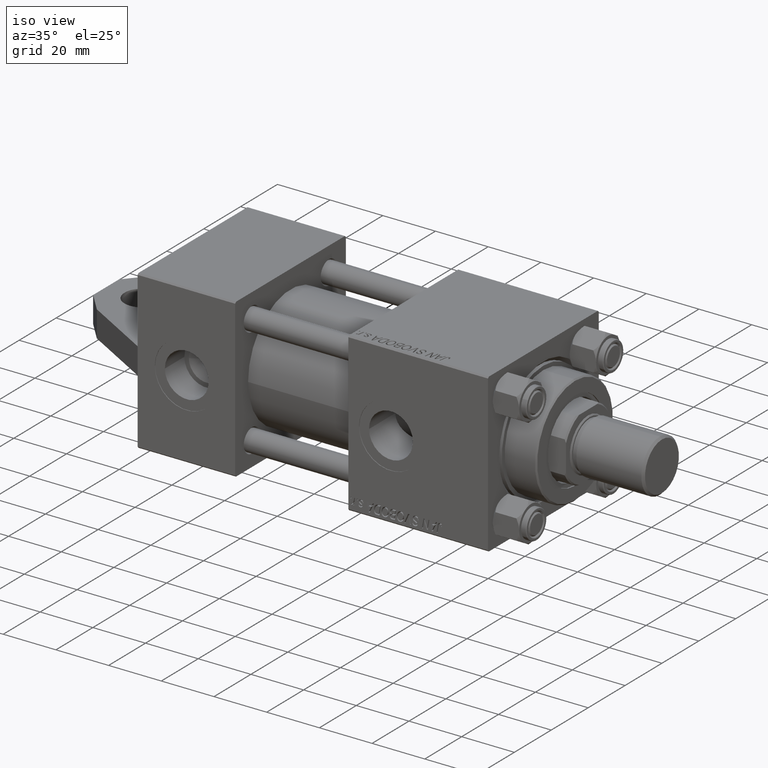
[diagram: clean part render]
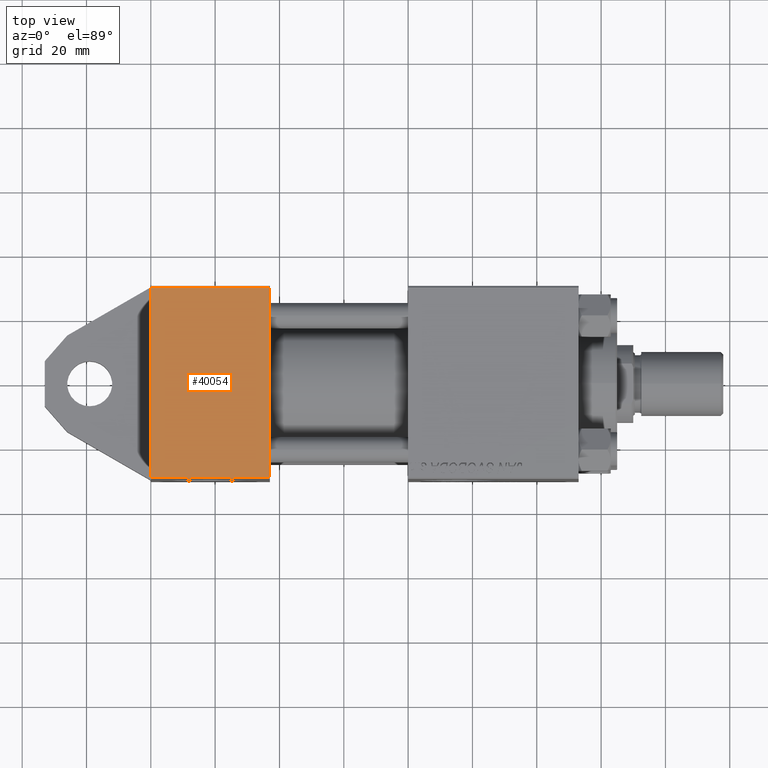
[diagram: tour spotlight — one face highlighted and labeled with its STEP entity id]
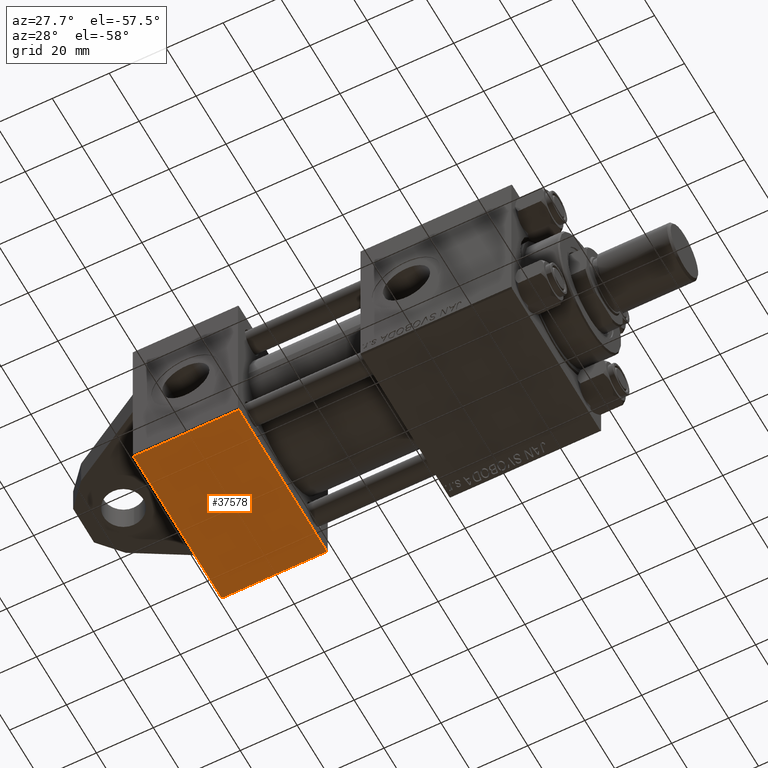
[diagram: tour spotlight — one face highlighted and labeled with its STEP entity id]
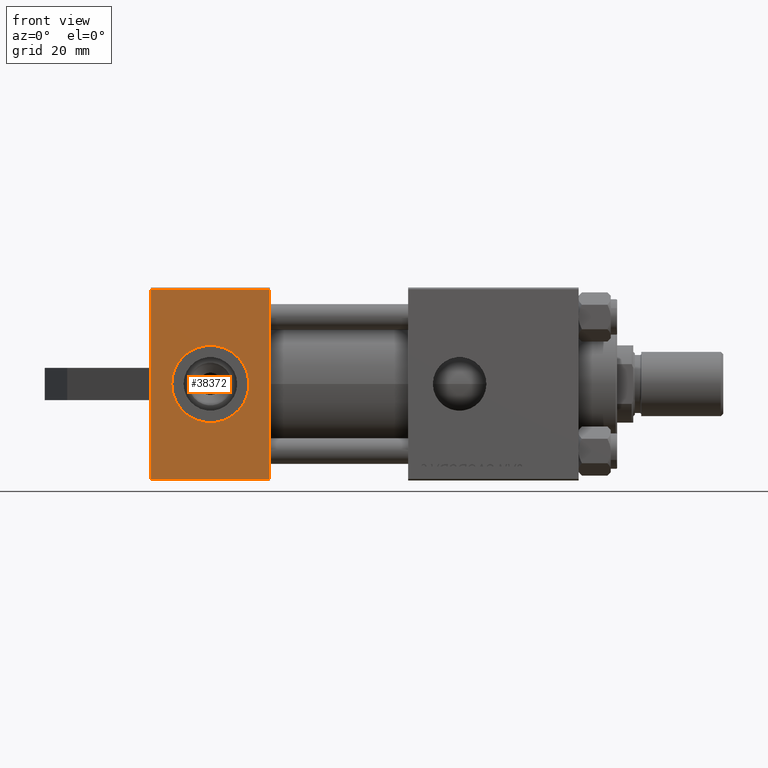
[diagram: tour spotlight — one face highlighted and labeled with its STEP entity id]
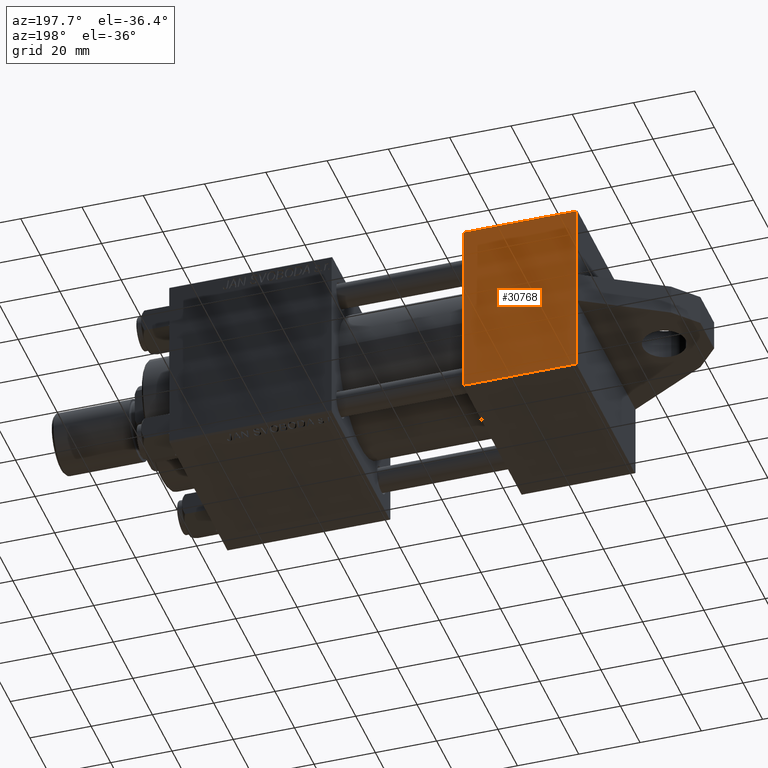
[diagram: tour spotlight — one face highlighted and labeled with its STEP entity id]
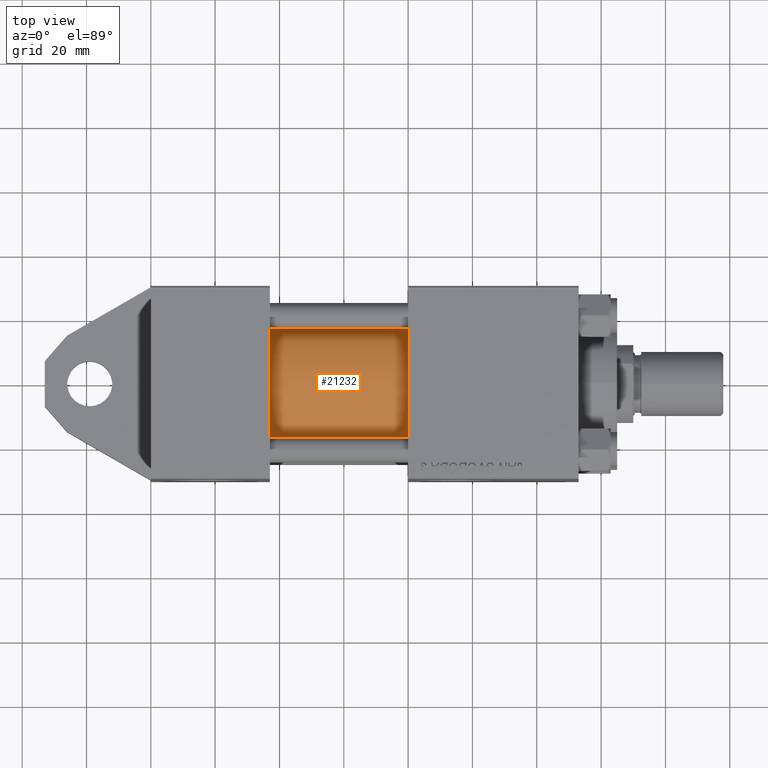
[diagram: tour spotlight — one face highlighted and labeled with its STEP entity id]
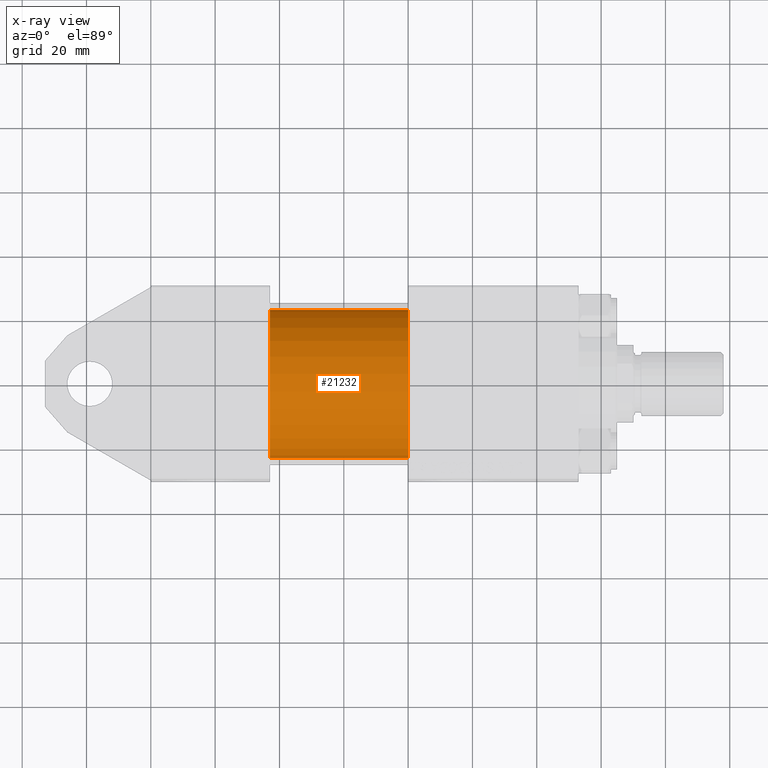
[diagram: x-ray of the same camera — body ghosted, this tour face saturated]
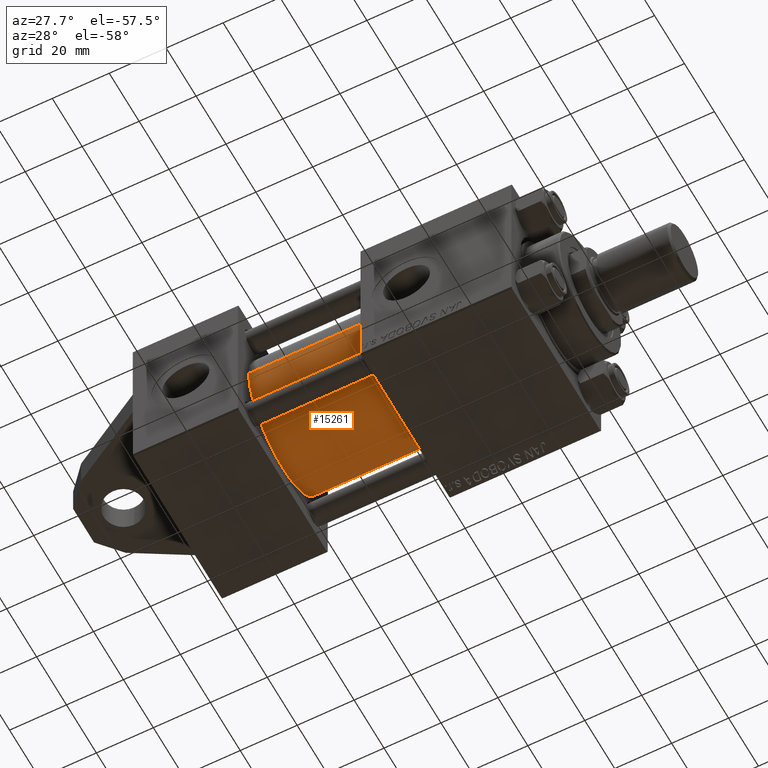
[diagram: tour spotlight — one face highlighted and labeled with its STEP entity id]
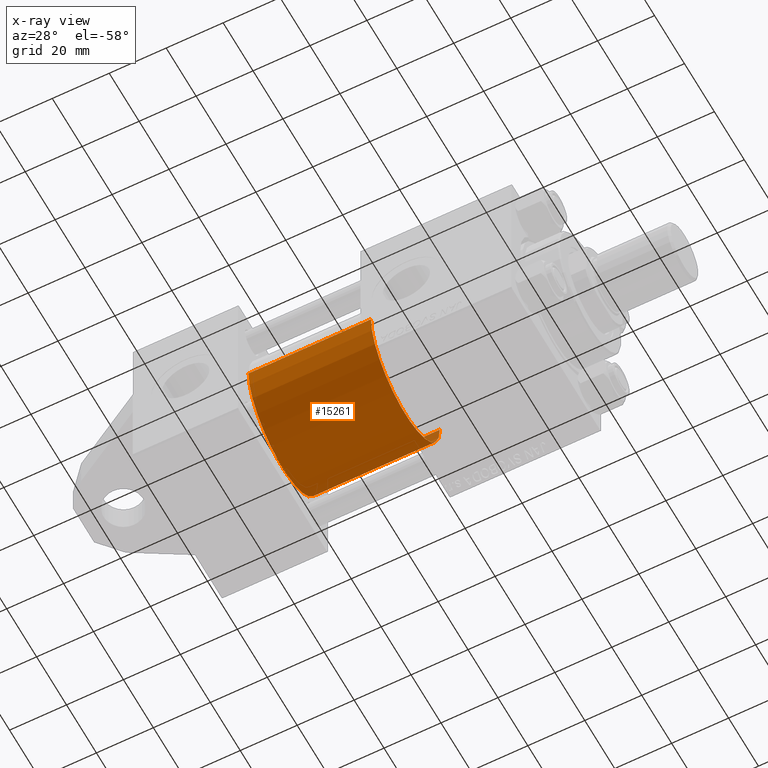
[diagram: x-ray of the same camera — body ghosted, this tour face saturated]
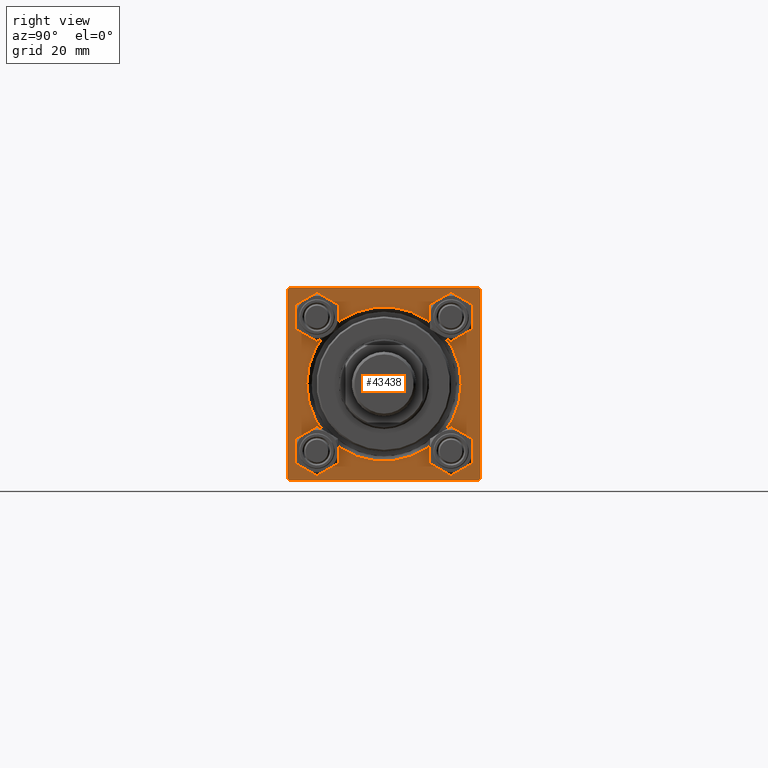
[diagram: tour spotlight — one face highlighted and labeled with its STEP entity id]
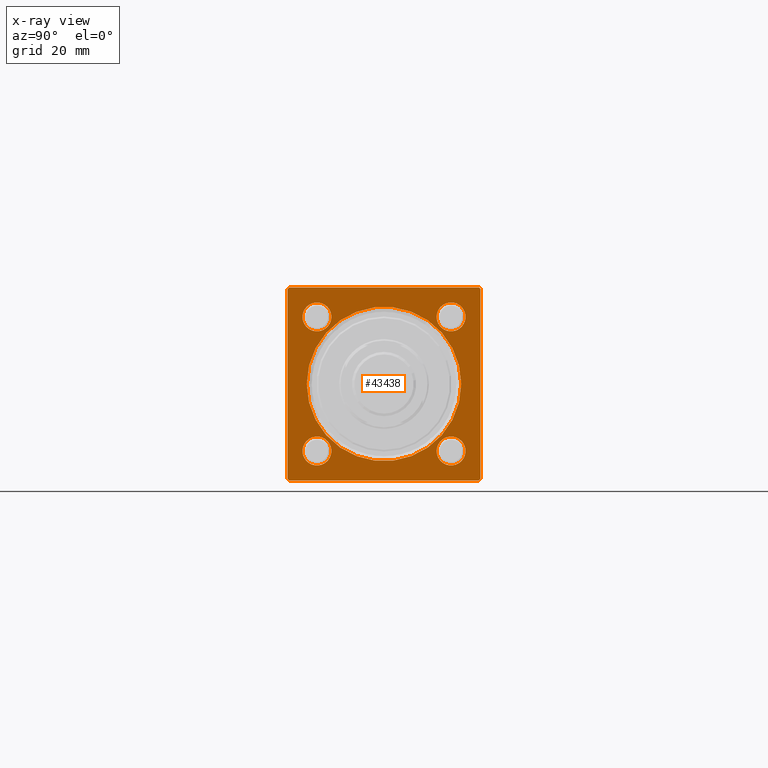
[diagram: x-ray of the same camera — body ghosted, this tour face saturated]
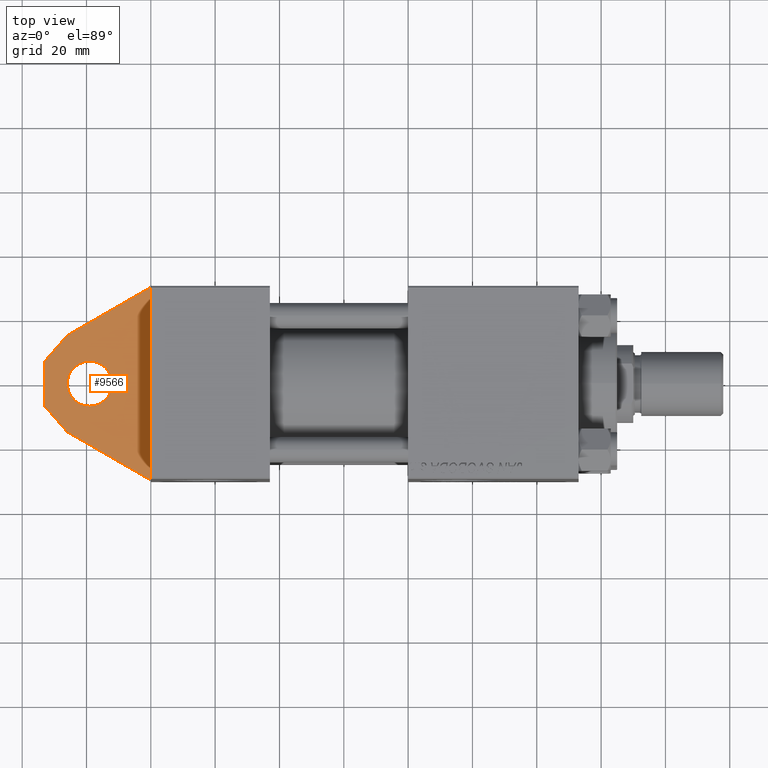
[diagram: tour spotlight — one face highlighted and labeled with its STEP entity id]
A machine part: a face-by-face anatomy tour. The part has 1092 B-rep faces; the first image is the clean iso view, then the 8 largest visible faces are spotlighted one at a time (largest first), each with its STEP entity span.

Face 1 — top view, entity #40054. In plain terms, the highlighted planar face has unit normal (-0, 0, 1).
Definition (entity closure, byte-faithful):
#1483 = CARTESIAN_POINT ( 'NONE',  ( 37.00000000000000000, 29.99999999999999289, 30.00000000000000000 ) ) ;
#2414 = DIRECTION ( 'NONE',  ( 1.000000000000000000, 0.000000000000000000, 0.000000000000000000 ) ) ;
#2551 = EDGE_CURVE ( 'NONE', #15691, #46094, #46058, .T. ) ;
#4638 = EDGE_CURVE ( 'NONE', #39217, #15691, #15138, .T. ) ;
#6113 = VECTOR ( 'NONE', #38077, 1000.000000000000000 ) ;
#6777 = CARTESIAN_POINT ( 'NONE',  ( 37.00000000000000000, 29.99999999999999289, -29.50000000000000000 ) ) ;
#7043 = EDGE_LOOP ( 'NONE', ( #14756, #37499, #34046, #13464 ) ) ;
#7874 = CARTESIAN_POINT ( 'NONE',  ( 37.00000000000000000, 29.99999999999999289, -29.50000000000000000 ) ) ;
#11736 = PLANE ( 'NONE',  #21147 ) ;
#13464 = ORIENTED_EDGE ( 'NONE', *, *, #31730, .T. ) ;
#14756 = ORIENTED_EDGE ( 'NONE', *, *, #4638, .T. ) ;
#15138 = LINE ( 'NONE', #1483, #42850 ) ;
#15280 = DIRECTION ( 'NONE',  ( 0.000000000000000000, -0.000000000000000000, 1.000000000000000000 ) ) ;
#15691 = VERTEX_POINT ( 'NONE', #7874 ) ;
#17427 = CARTESIAN_POINT ( 'NONE',  ( 0.000000000000000000, 29.99999999999999289, 29.50000000000000000 ) ) ;
#17972 = VECTOR ( 'NONE', #45819, 1000.000000000000000 ) ;
#20379 = CARTESIAN_POINT ( 'NONE',  ( 0.000000000000000000, 29.99999999999999289, -29.50000000000000000 ) ) ;
#21147 = AXIS2_PLACEMENT_3D ( 'NONE', #25622, #32448, #15280 ) ;
#23768 = VERTEX_POINT ( 'NONE', #17427 ) ;
#24281 = CARTESIAN_POINT ( 'NONE',  ( 37.00000000000000000, 29.99999999999999289, 29.50000000000000000 ) ) ;
#25622 = CARTESIAN_POINT ( 'NONE',  ( 37.00000000000000000, 29.99999999999999289, 30.00000000000000000 ) ) ;
#27658 = VECTOR ( 'NONE', #2414, 1000.000000000000000 ) ;
#31730 = EDGE_CURVE ( 'NONE', #23768, #39217, #42609, .T. ) ;
#32448 = DIRECTION ( 'NONE',  ( -0.000000000000000000, 1.000000000000000000, 0.000000000000000000 ) ) ;
#33156 = FACE_OUTER_BOUND ( 'NONE', #7043, .T. ) ;
#34046 = ORIENTED_EDGE ( 'NONE', *, *, #38649, .F. ) ;
#35501 = CARTESIAN_POINT ( 'NONE',  ( 37.00000000000000000, 29.99999999999999289, 29.50000000000000000 ) ) ;
#37499 = ORIENTED_EDGE ( 'NONE', *, *, #2551, .T. ) ;
#37711 = DIRECTION ( 'NONE',  ( 0.000000000000000000, 0.000000000000000000, -1.000000000000000000 ) ) ;
#38077 = DIRECTION ( 'NONE',  ( 0.000000000000000000, 0.000000000000000000, -1.000000000000000000 ) ) ;
#38649 = EDGE_CURVE ( 'NONE', #23768, #46094, #44656, .T. ) ;
#39217 = VERTEX_POINT ( 'NONE', #35501 ) ;
#40054 = ADVANCED_FACE ( 'NONE', ( #33156 ), #11736, .T. ) ;
#41367 = CARTESIAN_POINT ( 'NONE',  ( 0.000000000000000000, 29.99999999999999289, 30.00000000000000000 ) ) ;
#42609 = LINE ( 'NONE', #24281, #27658 ) ;
#42850 = VECTOR ( 'NONE', #37711, 1000.000000000000000 ) ;
#44656 = LINE ( 'NONE', #41367, #6113 ) ;
#45819 = DIRECTION ( 'NONE',  ( -1.000000000000000000, 0.000000000000000000, 0.000000000000000000 ) ) ;
#46058 = LINE ( 'NONE', #6777, #17972 ) ;
#46094 = VERTEX_POINT ( 'NONE', #20379 ) ;

Face 2 — auxiliary view, entity #37578. In plain terms, the highlighted planar face has unit normal (-0, 0, 1).
Definition (entity closure, byte-faithful):
#1183 = CARTESIAN_POINT ( 'NONE',  ( 0.000000000000000000, -30.00000000000000000, -29.50000000000001776 ) ) ;
#1382 = FACE_OUTER_BOUND ( 'NONE', #21402, .T. ) ;
#2344 = VERTEX_POINT ( 'NONE', #35990 ) ;
#2929 = VERTEX_POINT ( 'NONE', #38040 ) ;
#4296 = CARTESIAN_POINT ( 'NONE',  ( 37.00000000000000000, -30.00000000000000000, 29.99999999999999289 ) ) ;
#4597 = CARTESIAN_POINT ( 'NONE',  ( 0.000000000000000000, -30.00000000000000000, 29.99999999999999289 ) ) ;
#5074 = DIRECTION ( 'NONE',  ( -1.000000000000000000, 0.000000000000000000, 0.000000000000000000 ) ) ;
#6916 = EDGE_CURVE ( 'NONE', #33934, #19443, #24025, .T. ) ;
#8232 = CARTESIAN_POINT ( 'NONE',  ( 37.00000000000000000, -30.00000000000000000, -29.50000000000001776 ) ) ;
#9366 = DIRECTION ( 'NONE',  ( 0.000000000000000000, -0.000000000000000000, 1.000000000000000000 ) ) ;
#9839 = AXIS2_PLACEMENT_3D ( 'NONE', #23262, #40894, #9366 ) ;
#15409 = VECTOR ( 'NONE', #15822, 1000.000000000000000 ) ;
#15822 = DIRECTION ( 'NONE',  ( 0.000000000000000000, 0.000000000000000000, -1.000000000000000000 ) ) ;
#18162 = ORIENTED_EDGE ( 'NONE', *, *, #20326, .F. ) ;
#18882 = LINE ( 'NONE', #4296, #15409 ) ;
#19443 = VERTEX_POINT ( 'NONE', #8232 ) ;
#20326 = EDGE_CURVE ( 'NONE', #2929, #19443, #18882, .T. ) ;
#20956 = EDGE_CURVE ( 'NONE', #2344, #33934, #44798, .T. ) ;
#21402 = EDGE_LOOP ( 'NONE', ( #40766, #26548, #18162, #37562 ) ) ;
#23262 = CARTESIAN_POINT ( 'NONE',  ( 37.00000000000000000, -30.00000000000000000, 29.99999999999999289 ) ) ;
#24025 = LINE ( 'NONE', #28232, #24126 ) ;
#24126 = VECTOR ( 'NONE', #27322, 1000.000000000000000 ) ;
#26548 = ORIENTED_EDGE ( 'NONE', *, *, #6916, .T. ) ;
#27242 = PLANE ( 'NONE',  #9839 ) ;
#27322 = DIRECTION ( 'NONE',  ( 1.000000000000000000, 0.000000000000000000, 0.000000000000000000 ) ) ;
#28232 = CARTESIAN_POINT ( 'NONE',  ( 37.00000000000000000, -30.00000000000000000, -29.50000000000001776 ) ) ;
#29674 = VECTOR ( 'NONE', #33304, 1000.000000000000000 ) ;
#29777 = CARTESIAN_POINT ( 'NONE',  ( 37.00000000000000000, -30.00000000000000000, 29.49999999999999289 ) ) ;
#30408 = EDGE_CURVE ( 'NONE', #2929, #2344, #36836, .T. ) ;
#33304 = DIRECTION ( 'NONE',  ( 0.000000000000000000, 0.000000000000000000, -1.000000000000000000 ) ) ;
#33934 = VERTEX_POINT ( 'NONE', #1183 ) ;
#35990 = CARTESIAN_POINT ( 'NONE',  ( 0.000000000000000000, -30.00000000000000000, 29.49999999999999289 ) ) ;
#36836 = LINE ( 'NONE', #29777, #44911 ) ;
#37562 = ORIENTED_EDGE ( 'NONE', *, *, #30408, .T. ) ;
#37578 = ADVANCED_FACE ( 'NONE', ( #1382 ), #27242, .F. ) ;
#38040 = CARTESIAN_POINT ( 'NONE',  ( 37.00000000000000000, -30.00000000000000000, 29.49999999999999289 ) ) ;
#40766 = ORIENTED_EDGE ( 'NONE', *, *, #20956, .T. ) ;
#40894 = DIRECTION ( 'NONE',  ( -0.000000000000000000, 1.000000000000000000, 0.000000000000000000 ) ) ;
#44798 = LINE ( 'NONE', #4597, #29674 ) ;
#44911 = VECTOR ( 'NONE', #5074, 1000.000000000000000 ) ;

Face 3 — front view, entity #38372. In plain terms, the highlighted planar face has unit normal (-0, 1, 0).
Definition (entity closure, byte-faithful):
#282 = LINE ( 'NONE', #28752, #5697 ) ;
#817 = EDGE_LOOP ( 'NONE', ( #29460, #2753 ) ) ;
#1777 = EDGE_CURVE ( 'NONE', #8507, #26276, #34476, .T. ) ;
#2392 = ORIENTED_EDGE ( 'NONE', *, *, #33877, .T. ) ;
#2598 = DIRECTION ( 'NONE',  ( 1.000000000000000000, 0.000000000000000000, 0.000000000000000000 ) ) ;
#2691 = DIRECTION ( 'NONE',  ( 1.000000000000000000, 0.000000000000000000, 0.000000000000000000 ) ) ;
#2753 = ORIENTED_EDGE ( 'NONE', *, *, #10802, .F. ) ;
#2815 = DIRECTION ( 'NONE',  ( 0.000000000000000000, 1.156482317317871725E-16, -1.000000000000000000 ) ) ;
#3751 = PLANE ( 'NONE',  #9119 ) ;
#5205 = CARTESIAN_POINT ( 'NONE',  ( 30.50000000000000000, -3.469446951953614978E-15, 29.99999999999999645 ) ) ;
#5697 = VECTOR ( 'NONE', #7338, 1000.000000000000000 ) ;
#6630 = VERTEX_POINT ( 'NONE', #44560 ) ;
#7017 = EDGE_CURVE ( 'NONE', #46265, #28265, #28002, .T. ) ;
#7338 = DIRECTION ( 'NONE',  ( 0.000000000000000000, -1.000000000000000000, -1.156482317317871725E-16 ) ) ;
#8507 = VERTEX_POINT ( 'NONE', #5205 ) ;
#9119 = AXIS2_PLACEMENT_3D ( 'NONE', #18097, #2815, #35043 ) ;
#9852 = CIRCLE ( 'NONE', #23408, 12.00000000000000000 ) ;
#10802 = EDGE_CURVE ( 'NONE', #26276, #8507, #9852, .T. ) ;
#11347 = VERTEX_POINT ( 'NONE', #12039 ) ;
#12039 = CARTESIAN_POINT ( 'NONE',  ( 0.000000000000000000, 29.49999999999999289, 30.00000000000000000 ) ) ;
#12148 = VERTEX_POINT ( 'NONE', #15814 ) ;
#12610 = VECTOR ( 'NONE', #34300, 1000.000000000000000 ) ;
#12906 = VECTOR ( 'NONE', #22251, 1000.000000000000000 ) ;
#14081 = ORIENTED_EDGE ( 'NONE', *, *, #7017, .T. ) ;
#15714 = AXIS2_PLACEMENT_3D ( 'NONE', #17896, #39532, #29994 ) ;
#15814 = CARTESIAN_POINT ( 'NONE',  ( 0.000000000000000000, 5.000000000000000000, 29.99999999999999289 ) ) ;
#17896 = CARTESIAN_POINT ( 'NONE',  ( 18.50000000000000000, -3.469446951953614978E-15, 29.99999999999999645 ) ) ;
#17965 = CARTESIAN_POINT ( 'NONE',  ( 37.00000000000000000, 29.49999999999999289, 30.00000000000000000 ) ) ;
#18097 = CARTESIAN_POINT ( 'NONE',  ( 37.00000000000000000, 29.99999999999999289, 30.00000000000000000 ) ) ;
#19718 = LINE ( 'NONE', #27454, #12610 ) ;
#20978 = CARTESIAN_POINT ( 'NONE',  ( 37.00000000000000000, 29.99999999999999289, 30.00000000000000000 ) ) ;
#21190 = DIRECTION ( 'NONE',  ( -1.000000000000000000, 0.000000000000000000, 0.000000000000000000 ) ) ;
#21620 = FACE_BOUND ( 'NONE', #817, .T. ) ;
#21630 = EDGE_CURVE ( 'NONE', #11347, #12148, #282, .T. ) ;
#21889 = CARTESIAN_POINT ( 'NONE',  ( 0.000000000000000000, 29.49999999999999289, 30.00000000000000000 ) ) ;
#22251 = DIRECTION ( 'NONE',  ( 0.000000000000000000, 1.000000000000000000, 0.000000000000000000 ) ) ;
#22407 = ORIENTED_EDGE ( 'NONE', *, *, #37982, .F. ) ;
#23011 = CARTESIAN_POINT ( 'NONE',  ( 6.499999999999997335, -1.999870792976790833E-15, 29.99999999999999645 ) ) ;
#23408 = AXIS2_PLACEMENT_3D ( 'NONE', #27864, #39153, #2691 ) ;
#25213 = LINE ( 'NONE', #20978, #33869 ) ;
#26276 = VERTEX_POINT ( 'NONE', #23011 ) ;
#27244 = EDGE_CURVE ( 'NONE', #6630, #46265, #19718, .T. ) ;
#27454 = CARTESIAN_POINT ( 'NONE',  ( 0.000000000000000000, 29.99999999999999289, 30.00000000000000000 ) ) ;
#27841 = CARTESIAN_POINT ( 'NONE',  ( 0.000000000000000000, -29.49999999999998579, 29.99999999999999289 ) ) ;
#27864 = CARTESIAN_POINT ( 'NONE',  ( 18.50000000000000000, -3.469446951953614978E-15, 29.99999999999999645 ) ) ;
#28002 = LINE ( 'NONE', #34833, #30923 ) ;
#28265 = VERTEX_POINT ( 'NONE', #35899 ) ;
#28721 = LINE ( 'NONE', #21889, #45033 ) ;
#28752 = CARTESIAN_POINT ( 'NONE',  ( 0.000000000000000000, 29.99999999999999289, 30.00000000000000000 ) ) ;
#28979 = DIRECTION ( 'NONE',  ( 0.000000000000000000, -1.000000000000000000, -1.156482317317871725E-16 ) ) ;
#29460 = ORIENTED_EDGE ( 'NONE', *, *, #1777, .F. ) ;
#29994 = DIRECTION ( 'NONE',  ( 1.000000000000000000, 0.000000000000000000, 0.000000000000000000 ) ) ;
#30923 = VECTOR ( 'NONE', #2598, 1000.000000000000000 ) ;
#31407 = VERTEX_POINT ( 'NONE', #17965 ) ;
#32137 = CARTESIAN_POINT ( 'NONE',  ( 0.000000000000000000, -5.000000000000000000, 29.99999999999999289 ) ) ;
#32367 = LINE ( 'NONE', #32137, #12906 ) ;
#33869 = VECTOR ( 'NONE', #28979, 1000.000000000000000 ) ;
#33877 = EDGE_CURVE ( 'NONE', #31407, #11347, #28721, .T. ) ;
#34300 = DIRECTION ( 'NONE',  ( 0.000000000000000000, -1.000000000000000000, -1.156482317317871725E-16 ) ) ;
#34476 = CIRCLE ( 'NONE', #15714, 12.00000000000000000 ) ;
#34833 = CARTESIAN_POINT ( 'NONE',  ( 37.00000000000000000, -29.50000000000000000, 29.99999999999999289 ) ) ;
#35043 = DIRECTION ( 'NONE',  ( 0.000000000000000000, 1.000000000000000000, 1.156482317317871725E-16 ) ) ;
#35490 = ORIENTED_EDGE ( 'NONE', *, *, #43215, .F. ) ;
#35899 = CARTESIAN_POINT ( 'NONE',  ( 37.00000000000000000, -29.49999999999998579, 29.99999999999999289 ) ) ;
#35972 = FACE_OUTER_BOUND ( 'NONE', #43749, .T. ) ;
#37982 = EDGE_CURVE ( 'NONE', #31407, #28265, #25213, .T. ) ;
#38372 = ADVANCED_FACE ( 'NONE', ( #21620, #35972 ), #3751, .F. ) ;
#39153 = DIRECTION ( 'NONE',  ( 0.000000000000000000, 0.000000000000000000, 1.000000000000000000 ) ) ;
#39353 = ORIENTED_EDGE ( 'NONE', *, *, #21630, .T. ) ;
#39532 = DIRECTION ( 'NONE',  ( 0.000000000000000000, 0.000000000000000000, 1.000000000000000000 ) ) ;
#43215 = EDGE_CURVE ( 'NONE', #6630, #12148, #32367, .T. ) ;
#43749 = EDGE_LOOP ( 'NONE', ( #39353, #35490, #43804, #14081, #22407, #2392 ) ) ;
#43804 = ORIENTED_EDGE ( 'NONE', *, *, #27244, .T. ) ;
#44560 = CARTESIAN_POINT ( 'NONE',  ( 0.000000000000000000, -5.000000000000000000, 29.99999999999999289 ) ) ;
#45033 = VECTOR ( 'NONE', #21190, 1000.000000000000000 ) ;
#46265 = VERTEX_POINT ( 'NONE', #27841 ) ;

Face 4 — auxiliary view, entity #30768. In plain terms, the highlighted planar face has unit normal (-0, 1, 0).
Definition (entity closure, byte-faithful):
#826 = VECTOR ( 'NONE', #7798, 1000.000000000000000 ) ;
#3494 = DIRECTION ( 'NONE',  ( 0.000000000000000000, 1.000000000000000000, 1.156482317317871725E-16 ) ) ;
#4146 = VERTEX_POINT ( 'NONE', #32592 ) ;
#4770 = LINE ( 'NONE', #33243, #23000 ) ;
#5858 = ORIENTED_EDGE ( 'NONE', *, *, #20091, .F. ) ;
#7798 = DIRECTION ( 'NONE',  ( 0.000000000000000000, -1.000000000000000000, -1.156482317317871725E-16 ) ) ;
#7939 = ORIENTED_EDGE ( 'NONE', *, *, #20448, .T. ) ;
#8411 = ORIENTED_EDGE ( 'NONE', *, *, #10284, .F. ) ;
#8532 = DIRECTION ( 'NONE',  ( 1.000000000000000000, 0.000000000000000000, 0.000000000000000000 ) ) ;
#9276 = EDGE_CURVE ( 'NONE', #42110, #29981, #33451, .T. ) ;
#10284 = EDGE_CURVE ( 'NONE', #11704, #27048, #24986, .T. ) ;
#10556 = FACE_OUTER_BOUND ( 'NONE', #30518, .T. ) ;
#11704 = VERTEX_POINT ( 'NONE', #28399 ) ;
#13604 = LINE ( 'NONE', #17598, #31168 ) ;
#13614 = CARTESIAN_POINT ( 'NONE',  ( 0.000000000000000000, -29.50000000000000000, -30.00000000000000711 ) ) ;
#13900 = VECTOR ( 'NONE', #36819, 1000.000000000000000 ) ;
#13999 = VECTOR ( 'NONE', #25727, 1000.000000000000000 ) ;
#15611 = CARTESIAN_POINT ( 'NONE',  ( 0.000000000000000000, -5.000000000000000000, -30.00000000000000711 ) ) ;
#16916 = CARTESIAN_POINT ( 'NONE',  ( 37.00000000000000000, -29.50000000000000000, -30.00000000000000711 ) ) ;
#17598 = CARTESIAN_POINT ( 'NONE',  ( 37.00000000000000000, 29.99999999999999289, -30.00000000000000000 ) ) ;
#17827 = ORIENTED_EDGE ( 'NONE', *, *, #9276, .T. ) ;
#17897 = AXIS2_PLACEMENT_3D ( 'NONE', #39019, #45834, #3494 ) ;
#17920 = CARTESIAN_POINT ( 'NONE',  ( 0.000000000000000000, 29.99999999999999289, -30.00000000000000000 ) ) ;
#19260 = VERTEX_POINT ( 'NONE', #42343 ) ;
#20091 = EDGE_CURVE ( 'NONE', #4146, #29981, #42928, .T. ) ;
#20448 = EDGE_CURVE ( 'NONE', #19260, #42110, #13604, .T. ) ;
#20674 = CARTESIAN_POINT ( 'NONE',  ( 0.000000000000000000, 5.000000000000000000, -30.00000000000000711 ) ) ;
#21084 = VECTOR ( 'NONE', #30386, 1000.000000000000000 ) ;
#21142 = PLANE ( 'NONE',  #17897 ) ;
#23000 = VECTOR ( 'NONE', #8532, 1000.000000000000000 ) ;
#24986 = LINE ( 'NONE', #17920, #826 ) ;
#25727 = DIRECTION ( 'NONE',  ( 0.000000000000000000, 1.000000000000000000, 0.000000000000000000 ) ) ;
#26385 = CARTESIAN_POINT ( 'NONE',  ( 0.000000000000000000, -29.50000000000001066, -30.00000000000000711 ) ) ;
#26582 = EDGE_CURVE ( 'NONE', #4146, #27048, #33259, .T. ) ;
#27048 = VERTEX_POINT ( 'NONE', #20674 ) ;
#28399 = CARTESIAN_POINT ( 'NONE',  ( 0.000000000000000000, 29.49999999999997868, -30.00000000000000000 ) ) ;
#29981 = VERTEX_POINT ( 'NONE', #13614 ) ;
#30386 = DIRECTION ( 'NONE',  ( -1.000000000000000000, 0.000000000000000000, 0.000000000000000000 ) ) ;
#30518 = EDGE_LOOP ( 'NONE', ( #8411, #30868, #7939, #17827, #5858, #44140 ) ) ;
#30768 = ADVANCED_FACE ( 'NONE', ( #10556 ), #21142, .T. ) ;
#30868 = ORIENTED_EDGE ( 'NONE', *, *, #45578, .T. ) ;
#31168 = VECTOR ( 'NONE', #46285, 1000.000000000000000 ) ;
#32592 = CARTESIAN_POINT ( 'NONE',  ( 0.000000000000000000, -4.999999999999984013, -30.00000000000000355 ) ) ;
#33243 = CARTESIAN_POINT ( 'NONE',  ( 37.00000000000000000, 29.49999999999997868, -30.00000000000000000 ) ) ;
#33259 = LINE ( 'NONE', #15611, #13999 ) ;
#33451 = LINE ( 'NONE', #26385, #21084 ) ;
#36819 = DIRECTION ( 'NONE',  ( 0.000000000000000000, -1.000000000000000000, -1.156482317317871725E-16 ) ) ;
#39019 = CARTESIAN_POINT ( 'NONE',  ( 37.00000000000000000, 29.99999999999999289, -30.00000000000000000 ) ) ;
#40579 = CARTESIAN_POINT ( 'NONE',  ( 0.000000000000000000, 29.99999999999999289, -30.00000000000000000 ) ) ;
#42110 = VERTEX_POINT ( 'NONE', #16916 ) ;
#42343 = CARTESIAN_POINT ( 'NONE',  ( 37.00000000000000000, 29.49999999999997868, -30.00000000000000000 ) ) ;
#42928 = LINE ( 'NONE', #40579, #13900 ) ;
#44140 = ORIENTED_EDGE ( 'NONE', *, *, #26582, .T. ) ;
#45578 = EDGE_CURVE ( 'NONE', #11704, #19260, #4770, .T. ) ;
#45834 = DIRECTION ( 'NONE',  ( 0.000000000000000000, 1.156482317317871725E-16, -1.000000000000000000 ) ) ;
#46285 = DIRECTION ( 'NONE',  ( 0.000000000000000000, -1.000000000000000000, -1.156482317317871725E-16 ) ) ;

Face 5 — top view, entity #21232. An x-ray twin of the same camera follows (body ghosted, this face saturated) — the face is partly hidden behind the body. In plain terms, the highlighted cylindrical surface (partial cylindrical patch) has radius 23 mm, axis along (-1, -0, 0).
Definition (entity closure, byte-faithful):
#500 = CARTESIAN_POINT ( 'NONE',  ( 79.99999999999998579, 2.146024240737016609E-16, -23.00000000000000000 ) ) ;
#1918 = EDGE_LOOP ( 'NONE', ( #13188, #44605, #3411, #17929 ) ) ;
#3289 = VERTEX_POINT ( 'NONE', #25184 ) ;
#3411 = ORIENTED_EDGE ( 'NONE', *, *, #19683, .T. ) ;
#4301 = FACE_OUTER_BOUND ( 'NONE', #1918, .T. ) ;
#4774 = VERTEX_POINT ( 'NONE', #39480 ) ;
#8355 = VERTEX_POINT ( 'NONE', #8962 ) ;
#8962 = CARTESIAN_POINT ( 'NONE',  ( 37.00000000000000000, -2.602085213965210642E-15, 23.00000000000000000 ) ) ;
#11638 = AXIS2_PLACEMENT_3D ( 'NONE', #28170, #35472, #16688 ) ;
#12619 = CARTESIAN_POINT ( 'NONE',  ( 79.99999999999998579, -2.602085213965210642E-15, 0.000000000000000000 ) ) ;
#12986 = AXIS2_PLACEMENT_3D ( 'NONE', #12619, #31175, #13294 ) ;
#13188 = ORIENTED_EDGE ( 'NONE', *, *, #14551, .F. ) ;
#13294 = DIRECTION ( 'NONE',  ( 0.000000000000000000, 0.000000000000000000, -1.000000000000000000 ) ) ;
#14551 = EDGE_CURVE ( 'NONE', #18113, #4774, #32481, .T. ) ;
#16601 = VECTOR ( 'NONE', #45789, 1000.000000000000000 ) ;
#16688 = DIRECTION ( 'NONE',  ( 0.000000000000000000, 0.000000000000000000, 1.000000000000000000 ) ) ;
#17929 = ORIENTED_EDGE ( 'NONE', *, *, #37640, .F. ) ;
#18113 = VERTEX_POINT ( 'NONE', #34919 ) ;
#19683 = EDGE_CURVE ( 'NONE', #3289, #8355, #25128, .T. ) ;
#21232 = ADVANCED_FACE ( 'NONE', ( #4301 ), #43107, .T. ) ;
#24171 = LINE ( 'NONE', #38517, #16601 ) ;
#25128 = CIRCLE ( 'NONE', #11638, 23.00000000000000000 ) ;
#25184 = CARTESIAN_POINT ( 'NONE',  ( 37.00000000000000000, 2.146024240737016609E-16, -23.00000000000000000 ) ) ;
#28170 = CARTESIAN_POINT ( 'NONE',  ( 37.00000000000000000, -2.602085213965210642E-15, 0.000000000000000000 ) ) ;
#28564 = EDGE_CURVE ( 'NONE', #18113, #3289, #40730, .T. ) ;
#29005 = DIRECTION ( 'NONE',  ( 0.000000000000000000, 0.000000000000000000, 1.000000000000000000 ) ) ;
#30585 = VECTOR ( 'NONE', #36259, 1000.000000000000000 ) ;
#31175 = DIRECTION ( 'NONE',  ( 1.000000000000000000, 0.000000000000000000, 0.000000000000000000 ) ) ;
#32481 = CIRCLE ( 'NONE', #12986, 23.00000000000000000 ) ;
#34919 = CARTESIAN_POINT ( 'NONE',  ( 79.99999999999998579, 2.146024240737016609E-16, -23.00000000000000000 ) ) ;
#35472 = DIRECTION ( 'NONE',  ( 1.000000000000000000, -0.000000000000000000, 0.000000000000000000 ) ) ;
#36051 = CARTESIAN_POINT ( 'NONE',  ( 79.99999999999998579, -2.602085213965210642E-15, 0.000000000000000000 ) ) ;
#36259 = DIRECTION ( 'NONE',  ( -1.000000000000000000, -0.000000000000000000, -0.000000000000000000 ) ) ;
#37640 = EDGE_CURVE ( 'NONE', #4774, #8355, #24171, .T. ) ;
#38517 = CARTESIAN_POINT ( 'NONE',  ( 79.99999999999998579, -2.602085213965210642E-15, 23.00000000000000000 ) ) ;
#39480 = CARTESIAN_POINT ( 'NONE',  ( 79.99999999999998579, -2.602085213965210642E-15, 23.00000000000000000 ) ) ;
#40730 = LINE ( 'NONE', #500, #30585 ) ;
#43107 = CYLINDRICAL_SURFACE ( 'NONE', #44737, 23.00000000000000000 ) ;
#43574 = DIRECTION ( 'NONE',  ( -1.000000000000000000, -0.000000000000000000, -0.000000000000000000 ) ) ;
#44605 = ORIENTED_EDGE ( 'NONE', *, *, #28564, .T. ) ;
#44737 = AXIS2_PLACEMENT_3D ( 'NONE', #36051, #43574, #29005 ) ;
#45789 = DIRECTION ( 'NONE',  ( -1.000000000000000000, -0.000000000000000000, -0.000000000000000000 ) ) ;

Face 6 — auxiliary view, entity #15261. An x-ray twin of the same camera follows (body ghosted, this face saturated) — the face is partly hidden behind the body. In plain terms, the highlighted cylindrical surface (partial cylindrical patch) has radius 23 mm, axis along (-1, -0, 0).
Definition (entity closure, byte-faithful):
#500 = CARTESIAN_POINT ( 'NONE',  ( 79.99999999999998579, 2.146024240737016609E-16, -23.00000000000000000 ) ) ;
#3289 = VERTEX_POINT ( 'NONE', #25184 ) ;
#4161 = DIRECTION ( 'NONE',  ( -1.000000000000000000, -0.000000000000000000, -0.000000000000000000 ) ) ;
#4774 = VERTEX_POINT ( 'NONE', #39480 ) ;
#6471 = ORIENTED_EDGE ( 'NONE', *, *, #29666, .F. ) ;
#7701 = FACE_OUTER_BOUND ( 'NONE', #22989, .T. ) ;
#8355 = VERTEX_POINT ( 'NONE', #8962 ) ;
#8962 = CARTESIAN_POINT ( 'NONE',  ( 37.00000000000000000, -2.602085213965210642E-15, 23.00000000000000000 ) ) ;
#9140 = DIRECTION ( 'NONE',  ( 1.000000000000000000, -0.000000000000000000, 0.000000000000000000 ) ) ;
#10826 = CIRCLE ( 'NONE', #32610, 23.00000000000000000 ) ;
#13578 = DIRECTION ( 'NONE',  ( 0.000000000000000000, 0.000000000000000000, -1.000000000000000000 ) ) ;
#15261 = ADVANCED_FACE ( 'NONE', ( #7701 ), #29347, .T. ) ;
#16601 = VECTOR ( 'NONE', #45789, 1000.000000000000000 ) ;
#17692 = ORIENTED_EDGE ( 'NONE', *, *, #37640, .T. ) ;
#17796 = EDGE_CURVE ( 'NONE', #8355, #3289, #10826, .T. ) ;
#18113 = VERTEX_POINT ( 'NONE', #34919 ) ;
#18577 = AXIS2_PLACEMENT_3D ( 'NONE', #42970, #31698, #13578 ) ;
#19719 = CARTESIAN_POINT ( 'NONE',  ( 37.00000000000000000, -2.602085213965210642E-15, 0.000000000000000000 ) ) ;
#20800 = CIRCLE ( 'NONE', #18577, 23.00000000000000000 ) ;
#22984 = DIRECTION ( 'NONE',  ( 0.000000000000000000, 0.000000000000000000, 1.000000000000000000 ) ) ;
#22989 = EDGE_LOOP ( 'NONE', ( #46413, #6471, #17692, #39507 ) ) ;
#24171 = LINE ( 'NONE', #38517, #16601 ) ;
#25184 = CARTESIAN_POINT ( 'NONE',  ( 37.00000000000000000, 2.146024240737016609E-16, -23.00000000000000000 ) ) ;
#27282 = AXIS2_PLACEMENT_3D ( 'NONE', #43916, #4161, #22984 ) ;
#28564 = EDGE_CURVE ( 'NONE', #18113, #3289, #40730, .T. ) ;
#29347 = CYLINDRICAL_SURFACE ( 'NONE', #27282, 23.00000000000000000 ) ;
#29666 = EDGE_CURVE ( 'NONE', #4774, #18113, #20800, .T. ) ;
#30585 = VECTOR ( 'NONE', #36259, 1000.000000000000000 ) ;
#31698 = DIRECTION ( 'NONE',  ( 1.000000000000000000, 0.000000000000000000, 0.000000000000000000 ) ) ;
#32610 = AXIS2_PLACEMENT_3D ( 'NONE', #19719, #9140, #44645 ) ;
#34919 = CARTESIAN_POINT ( 'NONE',  ( 79.99999999999998579, 2.146024240737016609E-16, -23.00000000000000000 ) ) ;
#36259 = DIRECTION ( 'NONE',  ( -1.000000000000000000, -0.000000000000000000, -0.000000000000000000 ) ) ;
#37640 = EDGE_CURVE ( 'NONE', #4774, #8355, #24171, .T. ) ;
#38517 = CARTESIAN_POINT ( 'NONE',  ( 79.99999999999998579, -2.602085213965210642E-15, 23.00000000000000000 ) ) ;
#39480 = CARTESIAN_POINT ( 'NONE',  ( 79.99999999999998579, -2.602085213965210642E-15, 23.00000000000000000 ) ) ;
#39507 = ORIENTED_EDGE ( 'NONE', *, *, #17796, .T. ) ;
#40730 = LINE ( 'NONE', #500, #30585 ) ;
#42970 = CARTESIAN_POINT ( 'NONE',  ( 79.99999999999998579, -2.602085213965210642E-15, 0.000000000000000000 ) ) ;
#43916 = CARTESIAN_POINT ( 'NONE',  ( 79.99999999999998579, -2.602085213965210642E-15, 0.000000000000000000 ) ) ;
#44645 = DIRECTION ( 'NONE',  ( 0.000000000000000000, 0.000000000000000000, 1.000000000000000000 ) ) ;
#45789 = DIRECTION ( 'NONE',  ( -1.000000000000000000, -0.000000000000000000, -0.000000000000000000 ) ) ;
#46413 = ORIENTED_EDGE ( 'NONE', *, *, #28564, .F. ) ;

Face 7 — right view, entity #43438. An x-ray twin of the same camera follows (body ghosted, this face saturated) — the face is partly hidden behind the body. In plain terms, the highlighted planar face has unit normal (-1, -0, 0).
Definition (entity closure, byte-faithful):
#292 = EDGE_LOOP ( 'NONE', ( #31413, #2477 ) ) ;
#1213 = CARTESIAN_POINT ( 'NONE',  ( 132.9999999999999716, 29.50000000000000000, 30.00000000000000000 ) ) ;
#1520 = DIRECTION ( 'NONE',  ( -1.000000000000000000, 0.000000000000000000, -0.000000000000000000 ) ) ;
#1596 = LINE ( 'NONE', #34508, #13209 ) ;
#1940 = VECTOR ( 'NONE', #37440, 1000.000000000000114 ) ;
#2121 = CARTESIAN_POINT ( 'NONE',  ( 132.9999999999999716, 30.00000000000000000, -29.99999999999999289 ) ) ;
#2204 = VERTEX_POINT ( 'NONE', #33933 ) ;
#2242 = PLANE ( 'NONE',  #30939 ) ;
#2282 = DIRECTION ( 'NONE',  ( 0.000000000000000000, -1.000000000000000000, -1.156482317317871478E-16 ) ) ;
#2416 = CIRCLE ( 'NONE', #6910, 4.500000000000045297 ) ;
#2477 = ORIENTED_EDGE ( 'NONE', *, *, #44134, .T. ) ;
#3144 = CIRCLE ( 'NONE', #28713, 4.500000000000045297 ) ;
#3245 = CARTESIAN_POINT ( 'NONE',  ( 132.9999999999999716, 20.84999999999999787, -25.35000000000004761 ) ) ;
#3595 = CIRCLE ( 'NONE', #40304, 4.500000000000045297 ) ;
#3722 = EDGE_CURVE ( 'NONE', #12639, #35466, #15029, .T. ) ;
#4226 = ORIENTED_EDGE ( 'NONE', *, *, #37302, .T. ) ;
#4645 = CARTESIAN_POINT ( 'NONE',  ( 132.9999999999999716, 2.939152317953650655E-15, 24.00000000000002487 ) ) ;
#4662 = CARTESIAN_POINT ( 'NONE',  ( 132.9999999999999716, 20.84999999999999787, -20.85000000000000142 ) ) ;
#4685 = ORIENTED_EDGE ( 'NONE', *, *, #3722, .T. ) ;
#4705 = CARTESIAN_POINT ( 'NONE',  ( 132.9999999999999716, -20.84999999999999432, 20.85000000000000142 ) ) ;
#5660 = CARTESIAN_POINT ( 'NONE',  ( 132.9999999999999716, 20.84999999999999787, 25.35000000000004761 ) ) ;
#5734 = CIRCLE ( 'NONE', #27474, 4.500000000000045297 ) ;
#6831 = VERTEX_POINT ( 'NONE', #23343 ) ;
#6898 = CARTESIAN_POINT ( 'NONE',  ( 132.9999999999999716, -30.00000000000000000, 29.49999999999999289 ) ) ;
#6910 = AXIS2_PLACEMENT_3D ( 'NONE', #4705, #33867, #33402 ) ;
#6967 = DIRECTION ( 'NONE',  ( 0.000000000000000000, 0.7071067811865376918, -0.7071067811865573427 ) ) ;
#7474 = DIRECTION ( 'NONE',  ( 0.000000000000000000, 0.000000000000000000, 1.000000000000000000 ) ) ;
#8505 = EDGE_CURVE ( 'NONE', #2204, #19158, #19546, .T. ) ;
#8520 = CARTESIAN_POINT ( 'NONE',  ( 132.9999999999999716, 30.00000000000000000, -29.49999999999996447 ) ) ;
#8734 = LINE ( 'NONE', #1213, #1940 ) ;
#8858 = LINE ( 'NONE', #15925, #26871 ) ;
#9132 = DIRECTION ( 'NONE',  ( -1.000000000000000000, 0.000000000000000000, -0.000000000000000000 ) ) ;
#10202 = FACE_BOUND ( 'NONE', #26165, .T. ) ;
#10481 = LINE ( 'NONE', #14955, #39891 ) ;
#11035 = ORIENTED_EDGE ( 'NONE', *, *, #8505, .T. ) ;
#11211 = AXIS2_PLACEMENT_3D ( 'NONE', #15716, #12183, #22537 ) ;
#11315 = CIRCLE ( 'NONE', #39115, 24.00000000000002487 ) ;
#11346 = VECTOR ( 'NONE', #37881, 1000.000000000000000 ) ;
#11627 = VERTEX_POINT ( 'NONE', #29160 ) ;
#11979 = ORIENTED_EDGE ( 'NONE', *, *, #35812, .T. ) ;
#11989 = DIRECTION ( 'NONE',  ( 0.000000000000000000, 0.000000000000000000, 1.000000000000000000 ) ) ;
#12183 = DIRECTION ( 'NONE',  ( -1.000000000000000000, 0.000000000000000000, -0.000000000000000000 ) ) ;
#12639 = VERTEX_POINT ( 'NONE', #3245 ) ;
#13209 = VECTOR ( 'NONE', #2282, 1000.000000000000000 ) ;
#13275 = DIRECTION ( 'NONE',  ( -0.000000000000000000, 0.000000000000000000, 1.000000000000000000 ) ) ;
#13483 = ORIENTED_EDGE ( 'NONE', *, *, #30706, .T. ) ;
#14117 = VERTEX_POINT ( 'NONE', #38296 ) ;
#14222 = ORIENTED_EDGE ( 'NONE', *, *, #45983, .T. ) ;
#14252 = CARTESIAN_POINT ( 'NONE',  ( 132.9999999999999716, -29.50000000000002487, -30.00000000000000000 ) ) ;
#14536 = CARTESIAN_POINT ( 'NONE',  ( 132.9999999999999716, 20.84999999999999787, -20.85000000000000142 ) ) ;
#14819 = ORIENTED_EDGE ( 'NONE', *, *, #15846, .T. ) ;
#14955 = CARTESIAN_POINT ( 'NONE',  ( 132.9999999999999716, 30.00000000000000000, 30.00000000000000000 ) ) ;
#15029 = CIRCLE ( 'NONE', #28546, 4.500000000000045297 ) ;
#15189 = VERTEX_POINT ( 'NONE', #46505 ) ;
#15253 = DIRECTION ( 'NONE',  ( -1.000000000000000000, 0.000000000000000000, -0.000000000000000000 ) ) ;
#15716 = CARTESIAN_POINT ( 'NONE',  ( 132.9999999999999716, -20.84999999999999432, 20.85000000000000142 ) ) ;
#15846 = EDGE_CURVE ( 'NONE', #46089, #28560, #43404, .T. ) ;
#15896 = DIRECTION ( 'NONE',  ( 0.000000000000000000, 0.000000000000000000, 1.000000000000000000 ) ) ;
#15925 = CARTESIAN_POINT ( 'NONE',  ( 132.9999999999999716, -30.00000000000000000, 29.99999999999999289 ) ) ;
#15992 = CARTESIAN_POINT ( 'NONE',  ( 132.9999999999999716, -20.85000000000000142, -20.85000000000000142 ) ) ;
#16595 = CARTESIAN_POINT ( 'NONE',  ( 132.9999999999999716, 0.000000000000000000, 0.000000000000000000 ) ) ;
#16813 = FACE_BOUND ( 'NONE', #32870, .T. ) ;
#17632 = ORIENTED_EDGE ( 'NONE', *, *, #29822, .T. ) ;
#18024 = AXIS2_PLACEMENT_3D ( 'NONE', #34011, #37994, #15896 ) ;
#18409 = ORIENTED_EDGE ( 'NONE', *, *, #41432, .T. ) ;
#18530 = DIRECTION ( 'NONE',  ( 0.000000000000000000, 0.000000000000000000, 1.000000000000000000 ) ) ;
#18646 = AXIS2_PLACEMENT_3D ( 'NONE', #45383, #37420, #30596 ) ;
#19082 = CARTESIAN_POINT ( 'NONE',  ( 132.9999999999999716, -29.50000000000002487, -30.00000000000000000 ) ) ;
#19158 = VERTEX_POINT ( 'NONE', #8520 ) ;
#19546 = LINE ( 'NONE', #36971, #26305 ) ;
#19556 = VERTEX_POINT ( 'NONE', #26801 ) ;
#19815 = EDGE_LOOP ( 'NONE', ( #17632, #14819, #27605, #11035, #24091, #35273, #14222, #32227 ) ) ;
#19902 = DIRECTION ( 'NONE',  ( 0.000000000000000000, 0.000000000000000000, -1.000000000000000000 ) ) ;
#20717 = VECTOR ( 'NONE', #32059, 1000.000000000000000 ) ;
#20783 = FACE_BOUND ( 'NONE', #21229, .T. ) ;
#21070 = CIRCLE ( 'NONE', #29467, 4.500000000000045297 ) ;
#21229 = EDGE_LOOP ( 'NONE', ( #11979, #4226 ) ) ;
#21382 = DIRECTION ( 'NONE',  ( 0.000000000000000000, 0.000000000000000000, 1.000000000000000000 ) ) ;
#21716 = EDGE_CURVE ( 'NONE', #19556, #42794, #8734, .T. ) ;
#21765 = DIRECTION ( 'NONE',  ( 0.000000000000000000, 0.000000000000000000, -1.000000000000000000 ) ) ;
#21887 = VERTEX_POINT ( 'NONE', #42098 ) ;
#22537 = DIRECTION ( 'NONE',  ( 0.000000000000000000, 0.000000000000000000, 1.000000000000000000 ) ) ;
#22691 = EDGE_CURVE ( 'NONE', #15189, #27826, #5734, .T. ) ;
#23067 = VERTEX_POINT ( 'NONE', #4645 ) ;
#23343 = CARTESIAN_POINT ( 'NONE',  ( 132.9999999999999716, 0.000000000000000000, -24.00000000000002487 ) ) ;
#24091 = ORIENTED_EDGE ( 'NONE', *, *, #41659, .F. ) ;
#24752 = CARTESIAN_POINT ( 'NONE',  ( 132.9999999999999716, -29.50000000000001066, 29.99999999999999289 ) ) ;
#25139 = VECTOR ( 'NONE', #6967, 1000.000000000000114 ) ;
#26165 = EDGE_LOOP ( 'NONE', ( #4685, #18409 ) ) ;
#26305 = VECTOR ( 'NONE', #37433, 1000.000000000000114 ) ;
#26348 = EDGE_CURVE ( 'NONE', #14117, #36167, #3595, .T. ) ;
#26535 = DIRECTION ( 'NONE',  ( 0.000000000000000000, 0.000000000000000000, 1.000000000000000000 ) ) ;
#26801 = CARTESIAN_POINT ( 'NONE',  ( 132.9999999999999716, 30.00000000000000000, 29.50000000000000000 ) ) ;
#26871 = VECTOR ( 'NONE', #19902, 1000.000000000000000 ) ;
#27474 = AXIS2_PLACEMENT_3D ( 'NONE', #44322, #1520, #40571 ) ;
#27557 = ORIENTED_EDGE ( 'NONE', *, *, #44083, .T. ) ;
#27605 = ORIENTED_EDGE ( 'NONE', *, *, #41999, .F. ) ;
#27826 = VERTEX_POINT ( 'NONE', #5660 ) ;
#27977 = DIRECTION ( 'NONE',  ( -1.000000000000000000, 0.000000000000000000, -0.000000000000000000 ) ) ;
#28527 = ORIENTED_EDGE ( 'NONE', *, *, #22691, .T. ) ;
#28546 = AXIS2_PLACEMENT_3D ( 'NONE', #4662, #15253, #18530 ) ;
#28560 = VERTEX_POINT ( 'NONE', #19082 ) ;
#28713 = AXIS2_PLACEMENT_3D ( 'NONE', #15992, #44210, #11989 ) ;
#29160 = CARTESIAN_POINT ( 'NONE',  ( 132.9999999999999716, -30.00000000000000000, 29.49999999999999289 ) ) ;
#29467 = AXIS2_PLACEMENT_3D ( 'NONE', #14536, #40178, #7474 ) ;
#29822 = EDGE_CURVE ( 'NONE', #11627, #46089, #8858, .T. ) ;
#30596 = DIRECTION ( 'NONE',  ( 0.000000000000000000, 0.000000000000000000, 1.000000000000000000 ) ) ;
#30706 = EDGE_CURVE ( 'NONE', #27826, #15189, #44164, .T. ) ;
#30939 = AXIS2_PLACEMENT_3D ( 'NONE', #16595, #45276, #13275 ) ;
#31413 = ORIENTED_EDGE ( 'NONE', *, *, #26348, .T. ) ;
#32059 = DIRECTION ( 'NONE',  ( -0.000000000000000000, -0.7071067811865378028, -0.7071067811865573427 ) ) ;
#32227 = ORIENTED_EDGE ( 'NONE', *, *, #45496, .T. ) ;
#32789 = VERTEX_POINT ( 'NONE', #24752 ) ;
#32870 = EDGE_LOOP ( 'NONE', ( #28527, #13483 ) ) ;
#33253 = VERTEX_POINT ( 'NONE', #42233 ) ;
#33402 = DIRECTION ( 'NONE',  ( 0.000000000000000000, 0.000000000000000000, 1.000000000000000000 ) ) ;
#33867 = DIRECTION ( 'NONE',  ( -1.000000000000000000, 0.000000000000000000, -0.000000000000000000 ) ) ;
#33933 = CARTESIAN_POINT ( 'NONE',  ( 132.9999999999999716, 29.49999999999998579, -29.99999999999999289 ) ) ;
#34011 = CARTESIAN_POINT ( 'NONE',  ( 132.9999999999999716, 0.000000000000000000, 0.000000000000000000 ) ) ;
#34277 = EDGE_CURVE ( 'NONE', #33253, #21887, #43514, .T. ) ;
#34508 = CARTESIAN_POINT ( 'NONE',  ( 132.9999999999999716, 30.00000000000000000, 30.00000000000000000 ) ) ;
#34692 = FACE_BOUND ( 'NONE', #292, .T. ) ;
#35142 = FACE_OUTER_BOUND ( 'NONE', #19815, .T. ) ;
#35273 = ORIENTED_EDGE ( 'NONE', *, *, #21716, .T. ) ;
#35466 = VERTEX_POINT ( 'NONE', #41523 ) ;
#35812 = EDGE_CURVE ( 'NONE', #6831, #23067, #41308, .T. ) ;
#36167 = VERTEX_POINT ( 'NONE', #44529 ) ;
#36289 = LINE ( 'NONE', #6898, #20717 ) ;
#36971 = CARTESIAN_POINT ( 'NONE',  ( 132.9999999999999716, 30.00000000000000000, -29.49999999999997868 ) ) ;
#37302 = EDGE_CURVE ( 'NONE', #23067, #6831, #11315, .T. ) ;
#37420 = DIRECTION ( 'NONE',  ( -1.000000000000000000, 0.000000000000000000, -0.000000000000000000 ) ) ;
#37433 = DIRECTION ( 'NONE',  ( -0.000000000000000000, 0.7071067811865474617, 0.7071067811865474617 ) ) ;
#37440 = DIRECTION ( 'NONE',  ( 0.000000000000000000, -0.7071067811865474617, 0.7071067811865474617 ) ) ;
#37881 = DIRECTION ( 'NONE',  ( 0.000000000000000000, -1.000000000000000000, -1.156482317317871478E-16 ) ) ;
#37994 = DIRECTION ( 'NONE',  ( -1.000000000000000000, 0.000000000000000000, -0.000000000000000000 ) ) ;
#38296 = CARTESIAN_POINT ( 'NONE',  ( 132.9999999999999716, -20.85000000000000142, -25.35000000000004761 ) ) ;
#38669 = FACE_BOUND ( 'NONE', #45154, .T. ) ;
#39115 = AXIS2_PLACEMENT_3D ( 'NONE', #46313, #27977, #21382 ) ;
#39891 = VECTOR ( 'NONE', #21765, 1000.000000000000000 ) ;
#40178 = DIRECTION ( 'NONE',  ( -1.000000000000000000, 0.000000000000000000, -0.000000000000000000 ) ) ;
#40304 = AXIS2_PLACEMENT_3D ( 'NONE', #41346, #9132, #26535 ) ;
#40571 = DIRECTION ( 'NONE',  ( 0.000000000000000000, 0.000000000000000000, 1.000000000000000000 ) ) ;
#41308 = CIRCLE ( 'NONE', #18024, 24.00000000000002487 ) ;
#41346 = CARTESIAN_POINT ( 'NONE',  ( 132.9999999999999716, -20.85000000000000142, -20.85000000000000142 ) ) ;
#41432 = EDGE_CURVE ( 'NONE', #35466, #12639, #21070, .T. ) ;
#41523 = CARTESIAN_POINT ( 'NONE',  ( 132.9999999999999716, 20.84999999999999787, -16.34999999999995524 ) ) ;
#41659 = EDGE_CURVE ( 'NONE', #19556, #19158, #10481, .T. ) ;
#41999 = EDGE_CURVE ( 'NONE', #2204, #28560, #45153, .T. ) ;
#42098 = CARTESIAN_POINT ( 'NONE',  ( 132.9999999999999716, -20.84999999999999432, 16.34999999999995524 ) ) ;
#42233 = CARTESIAN_POINT ( 'NONE',  ( 132.9999999999999716, -20.84999999999999432, 25.35000000000004761 ) ) ;
#42794 = VERTEX_POINT ( 'NONE', #44752 ) ;
#43404 = LINE ( 'NONE', #14252, #25139 ) ;
#43438 = ADVANCED_FACE ( 'NONE', ( #34692, #10202, #16813, #38669, #20783, #35142 ), #2242, .F. ) ;
#43514 = CIRCLE ( 'NONE', #11211, 4.500000000000045297 ) ;
#44083 = EDGE_CURVE ( 'NONE', #21887, #33253, #2416, .T. ) ;
#44134 = EDGE_CURVE ( 'NONE', #36167, #14117, #3144, .T. ) ;
#44164 = CIRCLE ( 'NONE', #18646, 4.500000000000045297 ) ;
#44210 = DIRECTION ( 'NONE',  ( -1.000000000000000000, 0.000000000000000000, -0.000000000000000000 ) ) ;
#44322 = CARTESIAN_POINT ( 'NONE',  ( 132.9999999999999716, 20.84999999999999787, 20.85000000000000142 ) ) ;
#44529 = CARTESIAN_POINT ( 'NONE',  ( 132.9999999999999716, -20.85000000000000142, -16.34999999999995524 ) ) ;
#44752 = CARTESIAN_POINT ( 'NONE',  ( 132.9999999999999716, 29.50000000000000000, 30.00000000000000000 ) ) ;
#45153 = LINE ( 'NONE', #2121, #11346 ) ;
#45154 = EDGE_LOOP ( 'NONE', ( #27557, #45864 ) ) ;
#45276 = DIRECTION ( 'NONE',  ( -1.000000000000000000, 0.000000000000000000, -0.000000000000000000 ) ) ;
#45383 = CARTESIAN_POINT ( 'NONE',  ( 132.9999999999999716, 20.84999999999999787, 20.85000000000000142 ) ) ;
#45496 = EDGE_CURVE ( 'NONE', #32789, #11627, #36289, .T. ) ;
#45864 = ORIENTED_EDGE ( 'NONE', *, *, #34277, .T. ) ;
#45983 = EDGE_CURVE ( 'NONE', #42794, #32789, #1596, .T. ) ;
#46001 = CARTESIAN_POINT ( 'NONE',  ( 132.9999999999999716, -30.00000000000000000, -29.50000000000000000 ) ) ;
#46089 = VERTEX_POINT ( 'NONE', #46001 ) ;
#46313 = CARTESIAN_POINT ( 'NONE',  ( 132.9999999999999716, 0.000000000000000000, 0.000000000000000000 ) ) ;
#46505 = CARTESIAN_POINT ( 'NONE',  ( 132.9999999999999716, 20.84999999999999787, 16.34999999999995524 ) ) ;

Face 8 — top view, entity #9566. In plain terms, the highlighted planar face has unit normal (-0, 0, 1).
Definition (entity closure, byte-faithful):
#125 = CARTESIAN_POINT ( 'NONE',  ( -26.00000000000000355, 5.000000000000000000, -14.98889300106956135 ) ) ;
#764 = EDGE_CURVE ( 'NONE', #24179, #40294, #35032, .T. ) ;
#1662 = CIRCLE ( 'NONE', #12941, 7.000000000000000000 ) ;
#2180 = DIRECTION ( 'NONE',  ( 0.000000000000000000, 0.000000000000000000, -1.000000000000000000 ) ) ;
#3271 = CARTESIAN_POINT ( 'NONE',  ( -19.00000000000000000, 5.000000000000000000, 0.000000000000000000 ) ) ;
#3794 = VECTOR ( 'NONE', #2180, 1000.000000000000000 ) ;
#4108 = VERTEX_POINT ( 'NONE', #9791 ) ;
#4725 = ORIENTED_EDGE ( 'NONE', *, *, #34086, .T. ) ;
#5390 = EDGE_LOOP ( 'NONE', ( #24821, #46394 ) ) ;
#5614 = VECTOR ( 'NONE', #14847, 999.9999999999998863 ) ;
#6006 = VERTEX_POINT ( 'NONE', #44022 ) ;
#6103 = ORIENTED_EDGE ( 'NONE', *, *, #7820, .T. ) ;
#6117 = CARTESIAN_POINT ( 'NONE',  ( -33.00000000000000000, 5.000000000000000000, -7.000000000000000000 ) ) ;
#7275 = CARTESIAN_POINT ( 'NONE',  ( -33.00000000000000000, 5.000000000000000000, 7.000000000000000000 ) ) ;
#7820 = EDGE_CURVE ( 'NONE', #13987, #9371, #31212, .T. ) ;
#8945 = ORIENTED_EDGE ( 'NONE', *, *, #16449, .T. ) ;
#9371 = VERTEX_POINT ( 'NONE', #27989 ) ;
#9566 = ADVANCED_FACE ( 'NONE', ( #41604, #24406 ), #20416, .T. ) ;
#9791 = CARTESIAN_POINT ( 'NONE',  ( -19.00000000000000000, 5.000000000000000000, -7.000000000000000000 ) ) ;
#9903 = DIRECTION ( 'NONE',  ( 0.000000000000000000, 0.000000000000000000, 1.000000000000000000 ) ) ;
#10511 = EDGE_CURVE ( 'NONE', #27048, #24179, #20466, .T. ) ;
#12014 = CARTESIAN_POINT ( 'NONE',  ( -26.00000000000000355, 5.000000000000000000, 14.98889300106956135 ) ) ;
#12148 = VERTEX_POINT ( 'NONE', #15814 ) ;
#12225 = ORIENTED_EDGE ( 'NONE', *, *, #764, .T. ) ;
#12941 = AXIS2_PLACEMENT_3D ( 'NONE', #21410, #35758, #9903 ) ;
#13987 = VERTEX_POINT ( 'NONE', #7275 ) ;
#14847 = DIRECTION ( 'NONE',  ( 0.8660254037844363761, 0.000000000000000000, 0.5000000000000039968 ) ) ;
#15814 = CARTESIAN_POINT ( 'NONE',  ( 0.000000000000000000, 5.000000000000000000, 29.99999999999999289 ) ) ;
#16449 = EDGE_CURVE ( 'NONE', #9371, #12148, #18602, .T. ) ;
#17479 = EDGE_CURVE ( 'NONE', #4108, #6006, #26578, .T. ) ;
#18072 = AXIS2_PLACEMENT_3D ( 'NONE', #45127, #41819, #34769 ) ;
#18602 = LINE ( 'NONE', #12014, #5614 ) ;
#20007 = DIRECTION ( 'NONE',  ( -0.8660254037844361541, -0.000000000000000000, 0.5000000000000043299 ) ) ;
#20416 = PLANE ( 'NONE',  #18072 ) ;
#20466 = LINE ( 'NONE', #35039, #44404 ) ;
#20674 = CARTESIAN_POINT ( 'NONE',  ( 0.000000000000000000, 5.000000000000000000, -30.00000000000000711 ) ) ;
#21410 = CARTESIAN_POINT ( 'NONE',  ( -19.00000000000000000, 5.000000000000000000, 0.000000000000000000 ) ) ;
#22508 = VECTOR ( 'NONE', #34793, 1000.000000000000000 ) ;
#23982 = LINE ( 'NONE', #38326, #22508 ) ;
#24162 = DIRECTION ( 'NONE',  ( 0.6590226651366694055, 0.000000000000000000, 0.7521230795795068591 ) ) ;
#24179 = VERTEX_POINT ( 'NONE', #125 ) ;
#24406 = FACE_OUTER_BOUND ( 'NONE', #24407, .T. ) ;
#24407 = EDGE_LOOP ( 'NONE', ( #6103, #8945, #26465, #43569, #12225, #4725 ) ) ;
#24685 = DIRECTION ( 'NONE',  ( -0.6590226651366694055, -0.000000000000000000, 0.7521230795795068591 ) ) ;
#24700 = VECTOR ( 'NONE', #24685, 1000.000000000000000 ) ;
#24821 = ORIENTED_EDGE ( 'NONE', *, *, #44717, .F. ) ;
#25724 = LINE ( 'NONE', #41466, #3794 ) ;
#26465 = ORIENTED_EDGE ( 'NONE', *, *, #36116, .T. ) ;
#26578 = CIRCLE ( 'NONE', #27324, 7.000000000000000000 ) ;
#27048 = VERTEX_POINT ( 'NONE', #20674 ) ;
#27324 = AXIS2_PLACEMENT_3D ( 'NONE', #3271, #27973, #39264 ) ;
#27973 = DIRECTION ( 'NONE',  ( 0.000000000000000000, 1.000000000000000000, 0.000000000000000000 ) ) ;
#27989 = CARTESIAN_POINT ( 'NONE',  ( -26.00000000000000355, 5.000000000000000000, 14.98889300106956135 ) ) ;
#31212 = LINE ( 'NONE', #45548, #42139 ) ;
#32856 = CARTESIAN_POINT ( 'NONE',  ( -33.00000000000000000, 5.000000000000000000, -7.000000000000000000 ) ) ;
#34086 = EDGE_CURVE ( 'NONE', #40294, #13987, #23982, .T. ) ;
#34769 = DIRECTION ( 'NONE',  ( 0.000000000000000000, -0.000000000000000000, 1.000000000000000000 ) ) ;
#34793 = DIRECTION ( 'NONE',  ( 0.000000000000000000, 0.000000000000000000, 1.000000000000000000 ) ) ;
#35032 = LINE ( 'NONE', #6117, #24700 ) ;
#35039 = CARTESIAN_POINT ( 'NONE',  ( -26.00000000000000355, 5.000000000000000000, -14.98889300106956135 ) ) ;
#35758 = DIRECTION ( 'NONE',  ( 0.000000000000000000, 1.000000000000000000, 0.000000000000000000 ) ) ;
#36116 = EDGE_CURVE ( 'NONE', #12148, #27048, #25724, .T. ) ;
#38326 = CARTESIAN_POINT ( 'NONE',  ( -33.00000000000000000, 5.000000000000000000, -7.000000000000000000 ) ) ;
#39264 = DIRECTION ( 'NONE',  ( 0.000000000000000000, 0.000000000000000000, 1.000000000000000000 ) ) ;
#40294 = VERTEX_POINT ( 'NONE', #32856 ) ;
#41466 = CARTESIAN_POINT ( 'NONE',  ( 0.000000000000000000, 5.000000000000000000, 29.99999999999999289 ) ) ;
#41604 = FACE_BOUND ( 'NONE', #5390, .T. ) ;
#41819 = DIRECTION ( 'NONE',  ( -0.000000000000000000, 1.000000000000000000, 0.000000000000000000 ) ) ;
#42139 = VECTOR ( 'NONE', #24162, 1000.000000000000000 ) ;
#43569 = ORIENTED_EDGE ( 'NONE', *, *, #10511, .T. ) ;
#44022 = CARTESIAN_POINT ( 'NONE',  ( -19.00000000000000000, 5.000000000000000000, 7.000000000000000000 ) ) ;
#44404 = VECTOR ( 'NONE', #20007, 999.9999999999998863 ) ;
#44717 = EDGE_CURVE ( 'NONE', #6006, #4108, #1662, .T. ) ;
#45127 = CARTESIAN_POINT ( 'NONE',  ( 0.000000000000000000, 5.000000000000000000, 0.000000000000000000 ) ) ;
#45548 = CARTESIAN_POINT ( 'NONE',  ( -33.00000000000000000, 5.000000000000000000, 7.000000000000000000 ) ) ;
#46394 = ORIENTED_EDGE ( 'NONE', *, *, #17479, .F. ) ;